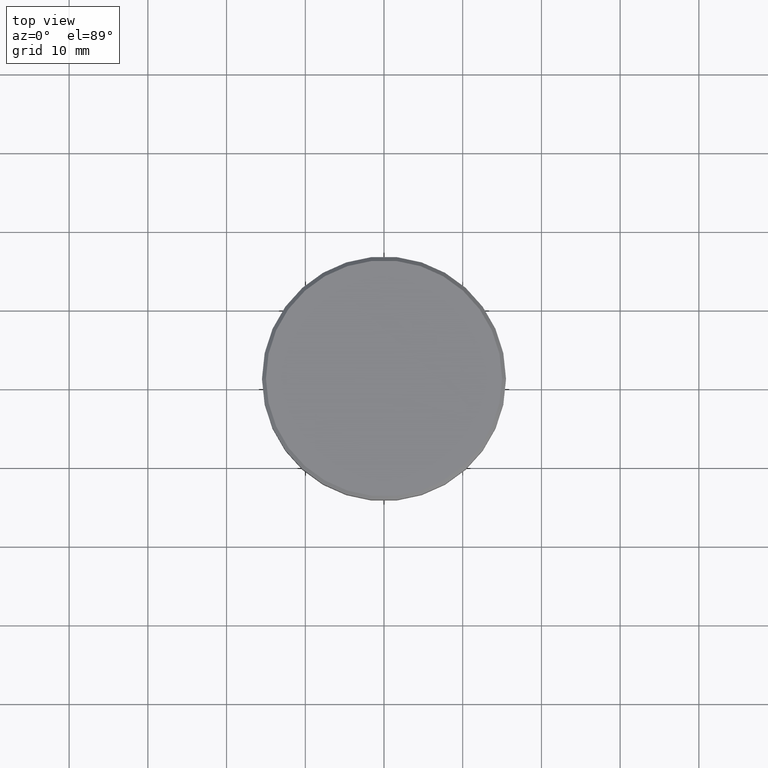
[diagram: clean part render]
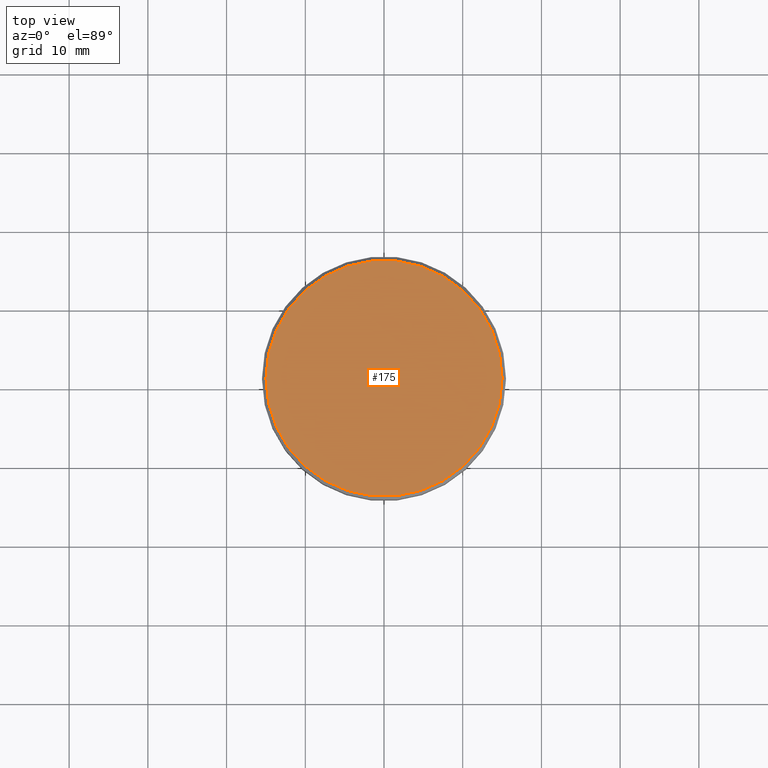
[diagram: same view with one face highlighted and labeled with its STEP entity id]
A machine part, top view. The second image highlights one B-rep face of the part: STEP entity #175.
In plain terms, the highlighted planar face has unit normal (0, -0, 1).
Its self-contained STEP definition (entity closure, byte-faithful):
#3 = CARTESIAN_POINT ( 'NONE',  ( -15.00000000000000000, 0.000000000000000000, 0.000000000000000000 ) ) ;
#55 = CARTESIAN_POINT ( 'NONE',  ( 15.00000000000000000, 1.867586368699713376E-15, 0.000000000000000000 ) ) ;
#108 = EDGE_CURVE ( 'NONE', #1124, #402, #520, .T. ) ;
#124 = PLANE ( 'NONE',  #695 ) ;
#161 = CARTESIAN_POINT ( 'NONE',  ( 0.000000000000000000, 0.000000000000000000, 0.000000000000000000 ) ) ;
#175 = ADVANCED_FACE ( 'NONE', ( #939 ), #124, .T. ) ;
#176 = DIRECTION ( 'NONE',  ( -0.000000000000000000, -0.000000000000000000, 1.000000000000000000 ) ) ;
#298 = DIRECTION ( 'NONE',  ( 0.000000000000000000, -0.000000000000000000, 1.000000000000000000 ) ) ;
#316 = EDGE_LOOP ( 'NONE', ( #534, #771 ) ) ;
#380 = EDGE_CURVE ( 'NONE', #402, #1124, #385, .T. ) ;
#385 = CIRCLE ( 'NONE', #964, 15.00000000000000000 ) ;
#400 = DIRECTION ( 'NONE',  ( 1.000000000000000000, 0.000000000000000000, 0.000000000000000000 ) ) ;
#402 = VERTEX_POINT ( 'NONE', #55 ) ;
#520 = CIRCLE ( 'NONE', #600, 15.00000000000000000 ) ;
#534 = ORIENTED_EDGE ( 'NONE', *, *, #108, .T. ) ;
#600 = AXIS2_PLACEMENT_3D ( 'NONE', #725, #176, #634 ) ;
#634 = DIRECTION ( 'NONE',  ( 1.000000000000000000, 0.000000000000000000, 0.000000000000000000 ) ) ;
#695 = AXIS2_PLACEMENT_3D ( 'NONE', #755, #298, #400 ) ;
#725 = CARTESIAN_POINT ( 'NONE',  ( 0.000000000000000000, 0.000000000000000000, 0.000000000000000000 ) ) ;
#755 = CARTESIAN_POINT ( 'NONE',  ( 0.000000000000000000, 0.000000000000000000, 0.000000000000000000 ) ) ;
#771 = ORIENTED_EDGE ( 'NONE', *, *, #380, .T. ) ;
#872 = DIRECTION ( 'NONE',  ( -0.000000000000000000, -0.000000000000000000, 1.000000000000000000 ) ) ;
#939 = FACE_OUTER_BOUND ( 'NONE', #316, .T. ) ;
#964 = AXIS2_PLACEMENT_3D ( 'NONE', #161, #872, #1151 ) ;
#1124 = VERTEX_POINT ( 'NONE', #3 ) ;
#1151 = DIRECTION ( 'NONE',  ( 1.000000000000000000, 0.000000000000000000, 0.000000000000000000 ) ) ;